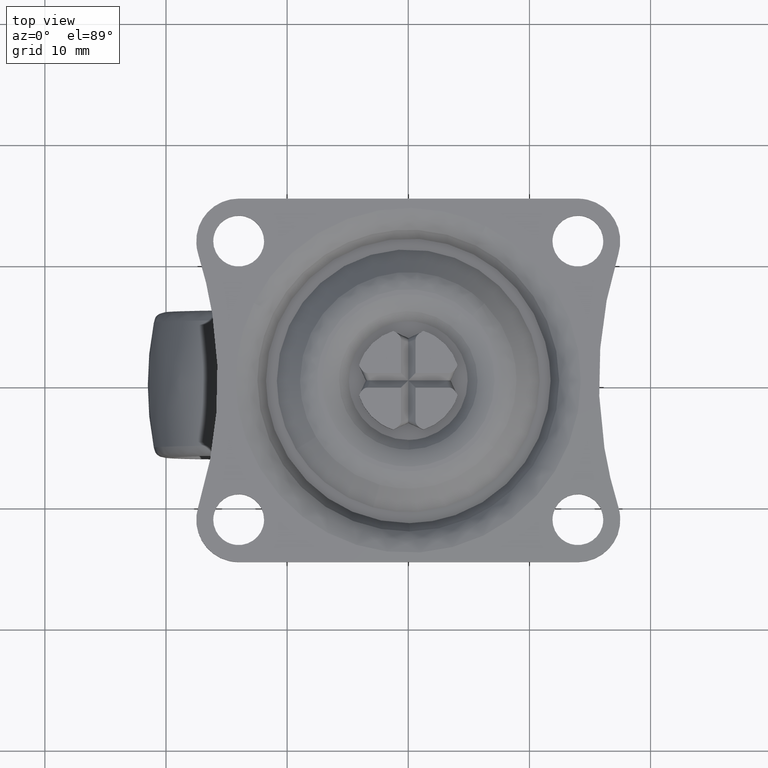
[diagram: clean part render]
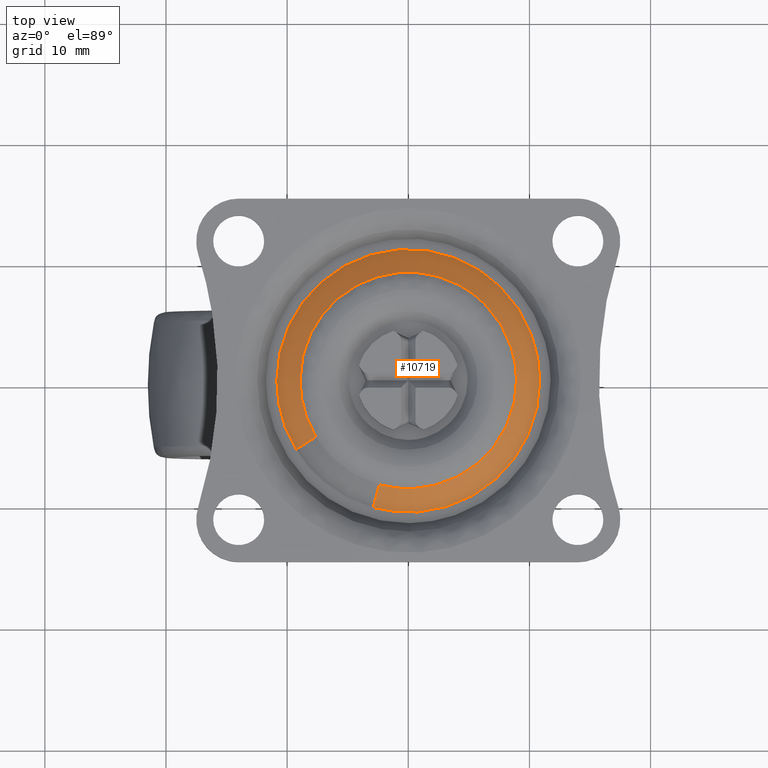
[diagram: same view with one face highlighted and labeled with its STEP entity id]
A machine part, top view. The second image highlights one B-rep face of the part: STEP entity #10719.
In plain terms, the highlighted face is a freeform B-spline surface patch.
Its self-contained STEP definition (entity closure, byte-faithful):
#10549=CARTESIAN_POINT('',(-7.586424889279357,-4.630490273163616,-0.537931048464565));
#10550=CARTESIAN_POINT('',(-9.594941514619856,-1.339810535572007,-0.537931048464565));
#10551=CARTESIAN_POINT('',(-8.564679097057990,2.375195725610437,-0.537931048464565));
#10552=CARTESIAN_POINT('',(-6.189483371447553,10.939874822668427,-0.537931048464565));
#10553=CARTESIAN_POINT('',(2.375195725610437,8.564679097057990,-0.537931048464565));
#10554=CARTESIAN_POINT('',(10.939874822668427,6.189483371447553,-0.537931048464565));
#10555=CARTESIAN_POINT('',(8.564679097057990,-2.375195725610437,-0.537931048464565));
#10556=CARTESIAN_POINT('',(6.189483371447553,-10.939874822668427,-0.537931048464565));
#10557=CARTESIAN_POINT('',(-2.375195725610437,-8.564679097057990,-0.537931048464565));
#10558=CARTESIAN_POINT('',(-9.303048797458255,-5.678257887753097,-2.549053773788387));
#10559=CARTESIAN_POINT('',(-11.766044009136120,-1.642977156392707,-2.549053773788385));
#10560=CARTESIAN_POINT('',(-10.502658200319949,2.912644896820054,-2.549053773788386));
#10561=CARTESIAN_POINT('',(-7.590013303499894,13.415303097139999,-2.549053773788387));
#10562=CARTESIAN_POINT('',(2.912644896820054,10.502658200319949,-2.549053773788386));
#10563=CARTESIAN_POINT('',(13.415303097139999,7.590013303499894,-2.549053773788387));
#10564=CARTESIAN_POINT('',(10.502658200319949,-2.912644896820054,-2.549053773788386));
#10565=CARTESIAN_POINT('',(7.590013303499894,-13.415303097139999,-2.549053773788387));
#10566=CARTESIAN_POINT('',(-2.912644896820054,-10.502658200319949,-2.549053773788386));
#10574=(BOUNDED_SURFACE()B_SPLINE_SURFACE(2,1,((#10549,#10558),(#10550,#10559),(#10551,#10560),(#10552,#10561),(#10553,#10562),(#10554,#10563),(#10555,#10564),(#10556,#10565),(#10557,#10566)),.UNSPECIFIED.,.F.,.F.,.U.)B_SPLINE_SURFACE_WITH_KNOTS((3,2,2,2,3),(2,2),(0.0,9.390232928356150,27.448373175194899,45.506513422033649,63.564653668872403),(0.0,2.844157033749691),.UNSPECIFIED.)GEOMETRIC_REPRESENTATION_ITEM()RATIONAL_B_SPLINE_SURFACE(((0.853787705168325,0.853787705168325),(0.847695526217005,0.847695526217005),(1.0,1.0),(0.707106781186548,0.707106781186548),(1.0,1.0),(0.707106781186548,0.707106781186548),(1.0,1.0),(0.707106781186548,0.707106781186548),(1.0,1.0)))REPRESENTATION_ITEM('')SURFACE());
#10575=CARTESIAN_POINT('',(-7.627272573077346,-4.655422280709475,-0.585786437627409));
#10576=VERTEX_POINT('',#10575);
#10577=CARTESIAN_POINT('',(-8.935784437626900,0.0,-0.585786437626903));
#10578=VERTEX_POINT('',#10577);
#10579=CARTESIAN_POINT('',(-7.627272573077346,-4.655422280709476,-0.585786437627409));
#10580=CARTESIAN_POINT('',(-8.935784437626902,-2.511604587229117,-0.585786437626903));
#10581=CARTESIAN_POINT('',(-8.935784437626900,0.0,-0.585786437626903));
#10589=(BOUNDED_CURVE()B_SPLINE_CURVE(2,(#10579,#10580,#10581),.UNSPECIFIED.,.F.,.U.)B_SPLINE_CURVE_WITH_KNOTS((3,3),(0.410988855204171,0.500000000000000),.UNSPECIFIED.)CURVE()GEOMETRIC_REPRESENTATION_ITEM()RATIONAL_B_SPLINE_CURVE((0.865692738530316,0.895716957161917,1.0))REPRESENTATION_ITEM(''));
#10590=EDGE_CURVE('',#10576,#10578,#10589,.T.);
#10591=ORIENTED_EDGE('',*,*,#10590,.T.);
#10592=CARTESIAN_POINT('',(6.278728665221195,6.358129431216311,-0.585786437617630));
#10593=VERTEX_POINT('',#10592);
#10594=CARTESIAN_POINT('',(-8.935784437626900,0.0,-0.585786437626903));
#10595=CARTESIAN_POINT('',(-8.935784437626900,8.935784437626900,-0.585786437626903));
#10596=CARTESIAN_POINT('',(0.0,8.935784437626900,-0.585786437626903));
#10597=CARTESIAN_POINT('',(3.668476648681777,8.935784437626900,-0.585786437626903));
#10598=CARTESIAN_POINT('',(6.278728665221195,6.358129431216312,-0.585786437617630));
#10606=(BOUNDED_CURVE()B_SPLINE_CURVE(2,(#10594,#10595,#10596,#10597,#10598),.UNSPECIFIED.,.F.,.U.)B_SPLINE_CURVE_WITH_KNOTS((3,2,3),(0.500000000000000,0.750000000000000,0.874051937432036),.UNSPECIFIED.)CURVE()GEOMETRIC_REPRESENTATION_ITEM()RATIONAL_B_SPLINE_CURVE((1.0,0.707106781186548,1.0,0.854664114981944,0.853561814883004))REPRESENTATION_ITEM(''));
#10607=EDGE_CURVE('',#10578,#10593,#10606,.T.);
#10608=ORIENTED_EDGE('',*,*,#10607,.T.);
#10609=CARTESIAN_POINT('',(8.935784437626900,0.0,-0.585786437626903));
#10610=VERTEX_POINT('',#10609);
#10611=CARTESIAN_POINT('',(6.278728665221195,6.358129431216312,-0.585786437617630));
#10612=CARTESIAN_POINT('',(8.935784437626900,3.734255157549381,-0.585786437626903));
#10613=CARTESIAN_POINT('',(8.935784437626900,0.0,-0.585786437626903));
#10621=(BOUNDED_CURVE()B_SPLINE_CURVE(2,(#10611,#10612,#10613),.UNSPECIFIED.,.F.,.U.)B_SPLINE_CURVE_WITH_KNOTS((3,3),(0.874051937432035,1.0),.UNSPECIFIED.)CURVE()GEOMETRIC_REPRESENTATION_ITEM()RATIONAL_B_SPLINE_CURVE((0.853561814883004,0.852442666204603,1.0))REPRESENTATION_ITEM(''));
#10622=EDGE_CURVE('',#10593,#10610,#10621,.T.);
#10623=ORIENTED_EDGE('',*,*,#10622,.T.);
#10624=CARTESIAN_POINT('',(7.040572531335232,-5.502597745151542,-0.585786437526405));
#10625=VERTEX_POINT('',#10624);
#10626=CARTESIAN_POINT('',(8.935784437626900,0.0,-0.585786437626903));
#10627=CARTESIAN_POINT('',(8.935784437626902,-3.077674553314177,-0.585786437626903));
#10628=CARTESIAN_POINT('',(7.040572531335232,-5.502597745151542,-0.585786437526405));
#10636=(BOUNDED_CURVE()B_SPLINE_CURVE(2,(#10626,#10627,#10628),.UNSPECIFIED.,.F.,.U.)B_SPLINE_CURVE_WITH_KNOTS((3,3),(0.0,0.106567917885342),.UNSPECIFIED.)CURVE()GEOMETRIC_REPRESENTATION_ITEM()RATIONAL_B_SPLINE_CURVE((1.0,0.875147918033258,0.856737647417282))REPRESENTATION_ITEM(''));
#10637=EDGE_CURVE('',#10610,#10625,#10636,.T.);
#10638=ORIENTED_EDGE('',*,*,#10637,.T.);
#10639=CARTESIAN_POINT('',(-2.387984522110662,-8.610794007402710,-0.585786437628437));
#10640=VERTEX_POINT('',#10639);
#10641=CARTESIAN_POINT('',(7.040572531335232,-5.502597745151542,-0.585786437526405));
#10642=CARTESIAN_POINT('',(4.357346803915745,-8.935784437626900,-0.585786437626903));
#10643=CARTESIAN_POINT('',(0.0,-8.935784437626900,-0.585786437626903));
#10644=CARTESIAN_POINT('',(-1.216106889268660,-8.935784437626900,-0.585786437626903));
#10645=CARTESIAN_POINT('',(-2.387984522110661,-8.610794007402710,-0.585786437628437));
#10653=(BOUNDED_CURVE()B_SPLINE_CURVE(2,(#10641,#10642,#10643,#10644,#10645),.UNSPECIFIED.,.F.,.U.)B_SPLINE_CURVE_WITH_KNOTS((3,2,3),(0.106567917885342,0.250000000000000,0.295548826634493),.UNSPECIFIED.)CURVE()GEOMETRIC_REPRESENTATION_ITEM()RATIONAL_B_SPLINE_CURVE((0.856737647417282,0.831958863153290,1.0,0.946636230215390,0.912717717218637))REPRESENTATION_ITEM(''));
#10654=EDGE_CURVE('',#10625,#10640,#10653,.T.);
#10655=ORIENTED_EDGE('',*,*,#10654,.T.);
#10656=CARTESIAN_POINT('',(-2.899536380477647,-10.455390417308880,-2.500002000003125));
#10657=VERTEX_POINT('',#10656);
#10658=CARTESIAN_POINT('',(-2.387984522110662,-8.610794007402710,-0.585786437628437));
#10659=CARTESIAN_POINT('',(-2.899536380477647,-10.455390417308880,-2.500002000003125));
#10660=QUASI_UNIFORM_CURVE('',1,(#10658,#10659),.UNSPECIFIED.,.F.,.U.);
#10661=EDGE_CURVE('',#10640,#10657,#10660,.T.);
#10662=ORIENTED_EDGE('',*,*,#10661,.T.);
#10663=CARTESIAN_POINT('',(10.850000000000000,0.0,-2.500002000000000));
#10664=VERTEX_POINT('',#10663);
#10665=CARTESIAN_POINT('',(10.850000000000000,0.0,-2.500002000000000));
#10666=CARTESIAN_POINT('',(10.850000000000000,-10.850000000000000,-2.500001999999999));
#10667=CARTESIAN_POINT('',(0.0,-10.850000000000000,-2.500002000000000));
#10668=CARTESIAN_POINT('',(-1.476620193870352,-10.850000000000001,-2.500002000000000));
#10669=CARTESIAN_POINT('',(-2.899536380477647,-10.455390417308884,-2.500002000003125));
#10677=(BOUNDED_CURVE()B_SPLINE_CURVE(2,(#10665,#10666,#10667,#10668,#10669),.UNSPECIFIED.,.F.,.U.)B_SPLINE_CURVE_WITH_KNOTS((3,2,3),(0.500000000000000,0.750000000000000,0.795548826634844),.UNSPECIFIED.)CURVE()GEOMETRIC_REPRESENTATION_ITEM()RATIONAL_B_SPLINE_CURVE((1.0,0.707106781186548,1.0,0.946636230214979,0.912717717218115))REPRESENTATION_ITEM(''));
#10678=EDGE_CURVE('',#10664,#10657,#10677,.T.);
#10679=ORIENTED_EDGE('',*,*,#10678,.F.);
#10680=CARTESIAN_POINT('',(-10.850000000000000,0.0,-2.500002000000000));
#10681=VERTEX_POINT('',#10680);
#10682=CARTESIAN_POINT('',(-10.850000000000000,0.0,-2.500002000000000));
#10683=CARTESIAN_POINT('',(-10.850000000000000,10.850000000000000,-2.500001999999999));
#10684=CARTESIAN_POINT('',(0.0,10.850000000000000,-2.500002000000000));
#10685=CARTESIAN_POINT('',(10.850000000000000,10.850000000000000,-2.500001999999999));
#10686=CARTESIAN_POINT('',(10.850000000000000,0.0,-2.500002000000000));
#10694=(BOUNDED_CURVE()B_SPLINE_CURVE(2,(#10682,#10683,#10684,#10685,#10686),.UNSPECIFIED.,.F.,.U.)B_SPLINE_CURVE_WITH_KNOTS((3,2,3),(0.0,0.250000000000000,0.500000000000000),.UNSPECIFIED.)CURVE()GEOMETRIC_REPRESENTATION_ITEM()RATIONAL_B_SPLINE_CURVE((1.0,0.707106781186548,1.0,0.707106781186548,1.0))REPRESENTATION_ITEM(''));
#10695=EDGE_CURVE('',#10681,#10664,#10694,.T.);
#10696=ORIENTED_EDGE('',*,*,#10695,.F.);
#10697=CARTESIAN_POINT('',(-9.261179921640508,-5.652702580096083,-2.500002000001024));
#10698=VERTEX_POINT('',#10697);
#10699=CARTESIAN_POINT('',(-9.261179921640508,-5.652702580096084,-2.500002000001024));
#10700=CARTESIAN_POINT('',(-10.850000000000001,-3.049638222779707,-2.500002000000000));
#10701=CARTESIAN_POINT('',(-10.850000000000000,0.0,-2.500002000000000));
#10709=(BOUNDED_CURVE()B_SPLINE_CURVE(2,(#10699,#10700,#10701),.UNSPECIFIED.,.F.,.U.)B_SPLINE_CURVE_WITH_KNOTS((3,3),(0.910988855203963,1.0),.UNSPECIFIED.)CURVE()GEOMETRIC_REPRESENTATION_ITEM()RATIONAL_B_SPLINE_CURVE((0.865692738530176,0.895716957161673,1.0))REPRESENTATION_ITEM(''));
#10710=EDGE_CURVE('',#10698,#10681,#10709,.T.);
#10711=ORIENTED_EDGE('',*,*,#10710,.F.);
#10712=CARTESIAN_POINT('',(-7.627272573077346,-4.655422280709475,-0.585786437627409));
#10713=CARTESIAN_POINT('',(-9.261179921640508,-5.652702580096083,-2.500002000001024));
#10714=QUASI_UNIFORM_CURVE('',1,(#10712,#10713),.UNSPECIFIED.,.F.,.U.);
#10715=EDGE_CURVE('',#10576,#10698,#10714,.T.);
#10716=ORIENTED_EDGE('',*,*,#10715,.F.);
#10717=EDGE_LOOP('',(#10591,#10608,#10623,#10638,#10655,#10662,#10679,#10696,#10711,#10716));
#10718=FACE_OUTER_BOUND('',#10717,.T.);
#10719=ADVANCED_FACE('',(#10718),#10574,.T.);